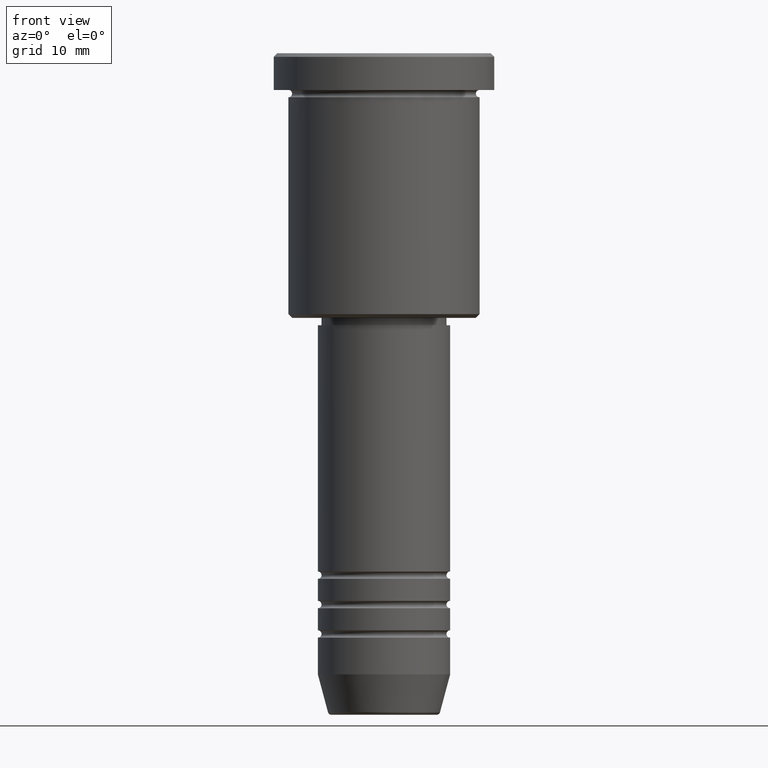
[diagram: clean part render]
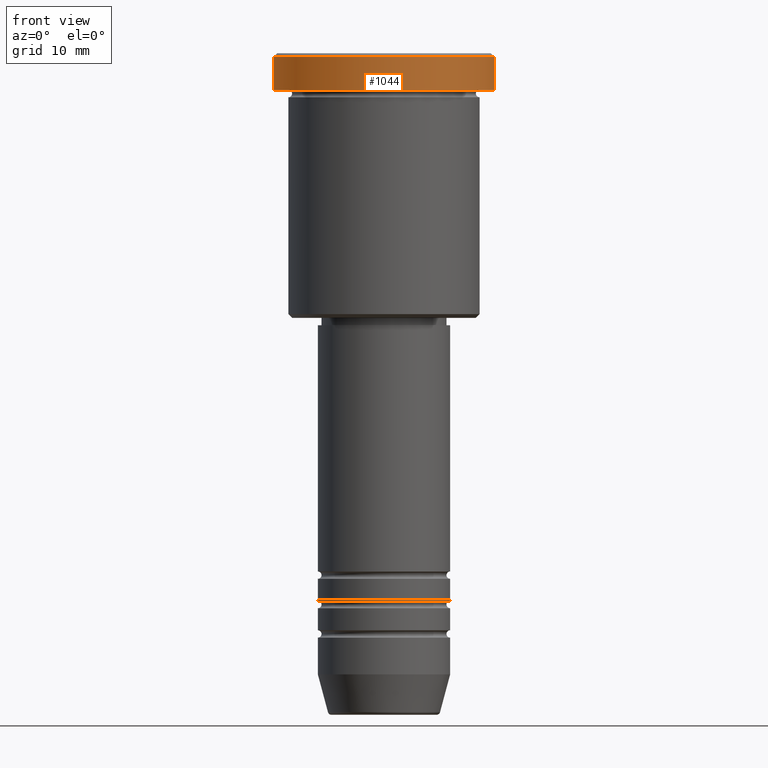
[diagram: same view with one face highlighted and labeled with its STEP entity id]
A machine part, front view. The second image highlights one B-rep face of the part: STEP entity #1044.
In plain terms, the highlighted cylindrical surface (partial cylindrical patch) has radius 15 mm, axis along (-0, -0, 1).
Its self-contained STEP definition (entity closure, byte-faithful):
#46 = EDGE_LOOP ( 'NONE', ( #529, #1034, #1020, #291 ) ) ;
#65 = VERTEX_POINT ( 'NONE', #294 ) ;
#125 = CARTESIAN_POINT ( 'NONE',  ( 15.00000000000000000, 0.000000000000000000, 0.000000000000000000 ) ) ;
#142 = DIRECTION ( 'NONE',  ( 1.000000000000000000, 0.000000000000000000, 0.000000000000000000 ) ) ;
#174 = VERTEX_POINT ( 'NONE', #612 ) ;
#181 = CARTESIAN_POINT ( 'NONE',  ( 15.00000000000000000, 0.000000000000000000, -4.999999999999999112 ) ) ;
#187 = CARTESIAN_POINT ( 'NONE',  ( 0.000000000000000000, 0.000000000000000000, 0.000000000000000000 ) ) ;
#269 = DIRECTION ( 'NONE',  ( 0.000000000000000000, 0.000000000000000000, -1.000000000000000000 ) ) ;
#270 = AXIS2_PLACEMENT_3D ( 'NONE', #187, #1076, #540 ) ;
#285 = AXIS2_PLACEMENT_3D ( 'NONE', #469, #269, #994 ) ;
#291 = ORIENTED_EDGE ( 'NONE', *, *, #1026, .T. ) ;
#294 = CARTESIAN_POINT ( 'NONE',  ( 15.00000000000000000, 0.000000000000000000, -0.5000000000000108802 ) ) ;
#309 = AXIS2_PLACEMENT_3D ( 'NONE', #1146, #1156, #142 ) ;
#378 = LINE ( 'NONE', #990, #608 ) ;
#391 = DIRECTION ( 'NONE',  ( -0.000000000000000000, -0.000000000000000000, 1.000000000000000000 ) ) ;
#451 = VERTEX_POINT ( 'NONE', #528 ) ;
#458 = CIRCLE ( 'NONE', #285, 15.00000000000000000 ) ;
#469 = CARTESIAN_POINT ( 'NONE',  ( 0.000000000000000000, 0.000000000000000000, -0.5000000000000108802 ) ) ;
#528 = CARTESIAN_POINT ( 'NONE',  ( -15.00000000000000000, 1.836970198721029589E-15, -0.5000000000000108802 ) ) ;
#529 = ORIENTED_EDGE ( 'NONE', *, *, #692, .F. ) ;
#540 = DIRECTION ( 'NONE',  ( 1.000000000000000000, 0.000000000000000000, 0.000000000000000000 ) ) ;
#608 = VECTOR ( 'NONE', #391, 1000.000000000000000 ) ;
#612 = CARTESIAN_POINT ( 'NONE',  ( -15.00000000000000000, 1.836970198721029589E-15, -4.999999999999999112 ) ) ;
#661 = CIRCLE ( 'NONE', #309, 15.00000000000000000 ) ;
#674 = LINE ( 'NONE', #125, #822 ) ;
#692 = EDGE_CURVE ( 'NONE', #174, #451, #378, .T. ) ;
#807 = EDGE_CURVE ( 'NONE', #1012, #65, #674, .T. ) ;
#822 = VECTOR ( 'NONE', #828, 1000.000000000000000 ) ;
#828 = DIRECTION ( 'NONE',  ( -0.000000000000000000, -0.000000000000000000, 1.000000000000000000 ) ) ;
#886 = EDGE_CURVE ( 'NONE', #174, #1012, #661, .T. ) ;
#895 = CYLINDRICAL_SURFACE ( 'NONE', #270, 15.00000000000000000 ) ;
#978 = FACE_OUTER_BOUND ( 'NONE', #46, .T. ) ;
#990 = CARTESIAN_POINT ( 'NONE',  ( -15.00000000000000000, 1.836970198721029589E-15, 0.000000000000000000 ) ) ;
#994 = DIRECTION ( 'NONE',  ( 1.000000000000000000, 0.000000000000000000, 0.000000000000000000 ) ) ;
#1012 = VERTEX_POINT ( 'NONE', #181 ) ;
#1020 = ORIENTED_EDGE ( 'NONE', *, *, #807, .T. ) ;
#1026 = EDGE_CURVE ( 'NONE', #65, #451, #458, .T. ) ;
#1034 = ORIENTED_EDGE ( 'NONE', *, *, #886, .T. ) ;
#1044 = ADVANCED_FACE ( 'NONE', ( #978 ), #895, .T. ) ;
#1076 = DIRECTION ( 'NONE',  ( -0.000000000000000000, -0.000000000000000000, 1.000000000000000000 ) ) ;
#1146 = CARTESIAN_POINT ( 'NONE',  ( 0.000000000000000000, 0.000000000000000000, -4.999999999999999112 ) ) ;
#1156 = DIRECTION ( 'NONE',  ( -0.000000000000000000, -0.000000000000000000, 1.000000000000000000 ) ) ;